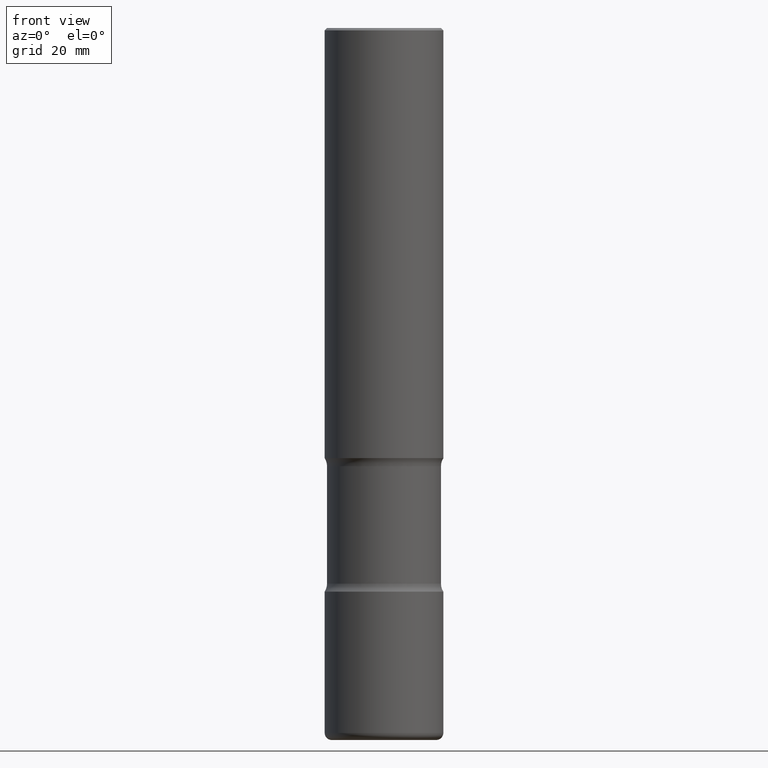
[diagram: clean part render]
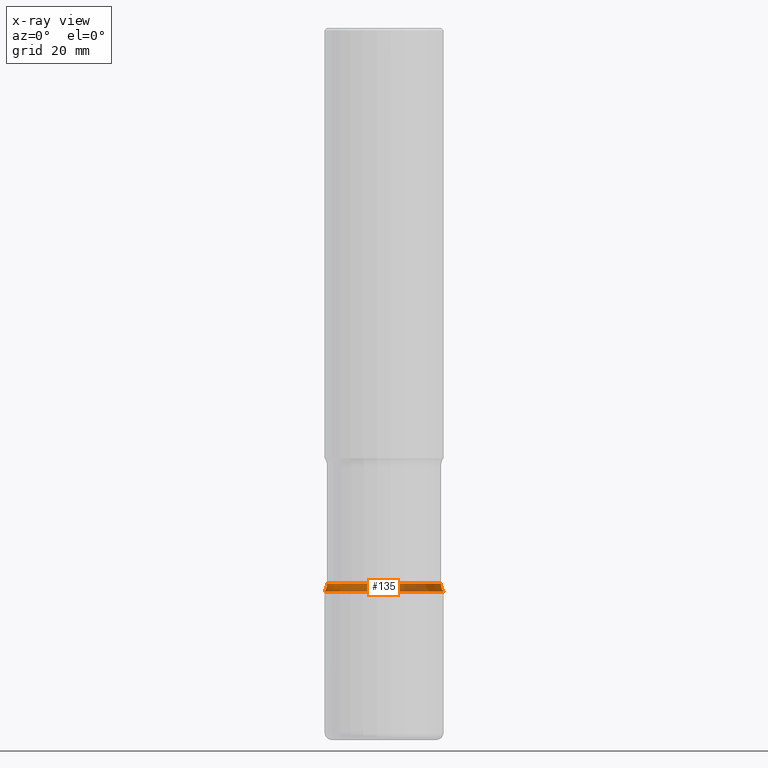
[diagram: x-ray — body ghosted, one internal face saturated and labeled with its STEP entity id]
A machine part, front view, then the same camera in x-ray: the body is ghosted and one INTERNAL B-rep face — a face not visible from any outside direction — is saturated and labeled: STEP entity #135.
In plain terms, the highlighted toroidal blend (fillet) surface has major radius 15.367 mm and minor (blend) radius 3.175 mm.
Its self-contained STEP definition (entity closure, byte-faithful):
#59 = EDGE_CURVE ( 'NONE', #658, #695, #266, .T. ) ;
#71 = AXIS2_PLACEMENT_3D ( 'NONE', #777, #222, #467 ) ;
#82 = DIRECTION ( 'NONE',  ( -1.000000000000000000, 6.982962677686266711E-15, -4.883557194083112901E-29 ) ) ;
#83 = AXIS2_PLACEMENT_3D ( 'NONE', #718, #801, #598 ) ;
#109 = VERTEX_POINT ( 'NONE', #333 ) ;
#135 = ADVANCED_FACE ( 'NONE', ( #515 ), #334, .F. ) ;
#167 = CARTESIAN_POINT ( 'NONE',  ( 1.161597682937940108E-28, -1.658453635950494339E-14, -4.750000000000000000 ) ) ;
#181 = AXIS2_PLACEMENT_3D ( 'NONE', #712, #398, #82 ) ;
#185 = EDGE_CURVE ( 'NONE', #109, #489, #435, .T. ) ;
#204 = EDGE_CURVE ( 'NONE', #489, #695, #786, .T. ) ;
#217 = AXIS2_PLACEMENT_3D ( 'NONE', #391, #650, #522 ) ;
#222 = DIRECTION ( 'NONE',  ( -6.982962677686266711E-15, -1.000000000000000000, 3.491481338843145583E-15 ) ) ;
#258 = ORIENTED_EDGE ( 'NONE', *, *, #185, .T. ) ;
#266 = CIRCLE ( 'NONE', #217, 0.1250000000000000278 ) ;
#276 = CIRCLE ( 'NONE', #487, 0.5000000000000000000 ) ;
#296 = ORIENTED_EDGE ( 'NONE', *, *, #204, .T. ) ;
#321 = EDGE_CURVE ( 'NONE', #109, #658, #276, .T. ) ;
#325 = ORIENTED_EDGE ( 'NONE', *, *, #59, .F. ) ;
#333 = CARTESIAN_POINT ( 'NONE',  ( -0.5000000000000000000, -1.309305502066180846E-14, -4.750000000000000000 ) ) ;
#334 = TOROIDAL_SURFACE ( 'NONE', #181, 0.6049999999999999822, 0.1250000000000000278 ) ;
#361 = CARTESIAN_POINT ( 'NONE',  ( 0.4799999999999999267, -1.982777848556320013E-14, -4.682176700168747985 ) ) ;
#391 = CARTESIAN_POINT ( 'NONE',  ( 0.6049999999999999822, -2.049833386245713884E-14, -4.682176700168747985 ) ) ;
#398 = DIRECTION ( 'NONE',  ( 2.445468806185136597E-29, -3.491481338843145583E-15, -1.000000000000000000 ) ) ;
#435 = CIRCLE ( 'NONE', #71, 0.1250000000000000278 ) ;
#467 = DIRECTION ( 'NONE',  ( 1.000000000000000000, -6.982962677686261189E-15, 0.000000000000000000 ) ) ;
#475 = DIRECTION ( 'NONE',  ( 2.445468806185136597E-29, -3.491481338843145583E-15, -1.000000000000000000 ) ) ;
#487 = AXIS2_PLACEMENT_3D ( 'NONE', #167, #475, #725 ) ;
#489 = VERTEX_POINT ( 'NONE', #577 ) ;
#515 = FACE_OUTER_BOUND ( 'NONE', #803, .T. ) ;
#522 = DIRECTION ( 'NONE',  ( -1.000000000000000000, 6.860497997771528407E-15, 0.000000000000000000 ) ) ;
#577 = CARTESIAN_POINT ( 'NONE',  ( -0.4799999999999999267, -1.299591048851595473E-14, -4.682176700168747985 ) ) ;
#581 = CARTESIAN_POINT ( 'NONE',  ( 0.5000000000000000000, -2.001478535839070917E-14, -4.750000000000000000 ) ) ;
#598 = DIRECTION ( 'NONE',  ( -1.000000000000000000, 6.982962677686265133E-15, 0.000000000000000000 ) ) ;
#650 = DIRECTION ( 'NONE',  ( 6.860497997771531562E-15, 1.000000000000000000, -3.491481338843145583E-15 ) ) ;
#658 = VERTEX_POINT ( 'NONE', #581 ) ;
#695 = VERTEX_POINT ( 'NONE', #361 ) ;
#712 = CARTESIAN_POINT ( 'NONE',  ( 1.145011706530952997E-28, -1.634773257380536149E-14, -4.682176700168747985 ) ) ;
#718 = CARTESIAN_POINT ( 'NONE',  ( 1.145011706530952997E-28, -1.634773257380536149E-14, -4.682176700168747985 ) ) ;
#725 = DIRECTION ( 'NONE',  ( -1.000000000000000000, 6.982962677686266711E-15, 0.000000000000000000 ) ) ;
#777 = CARTESIAN_POINT ( 'NONE',  ( -0.6049999999999999822, -1.212304015380516982E-14, -4.682176700168747985 ) ) ;
#786 = CIRCLE ( 'NONE', #83, 0.4799999999999999267 ) ;
#797 = ORIENTED_EDGE ( 'NONE', *, *, #321, .F. ) ;
#801 = DIRECTION ( 'NONE',  ( 2.445468806185136597E-29, -3.491481338843145583E-15, -1.000000000000000000 ) ) ;
#803 = EDGE_LOOP ( 'NONE', ( #325, #797, #258, #296 ) ) ;